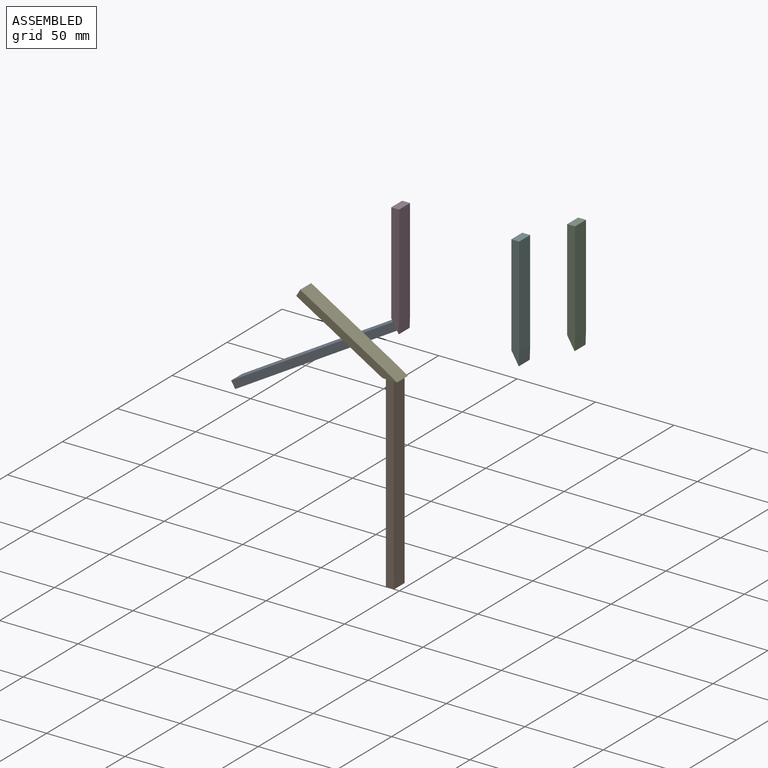
[diagram: assembled view]
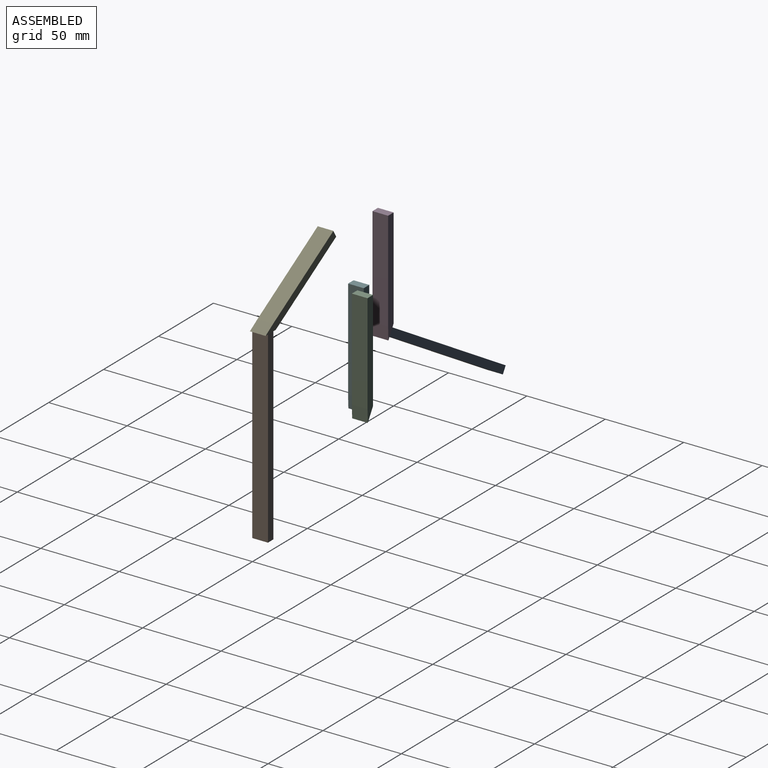
[diagram: assembled view, second angle]
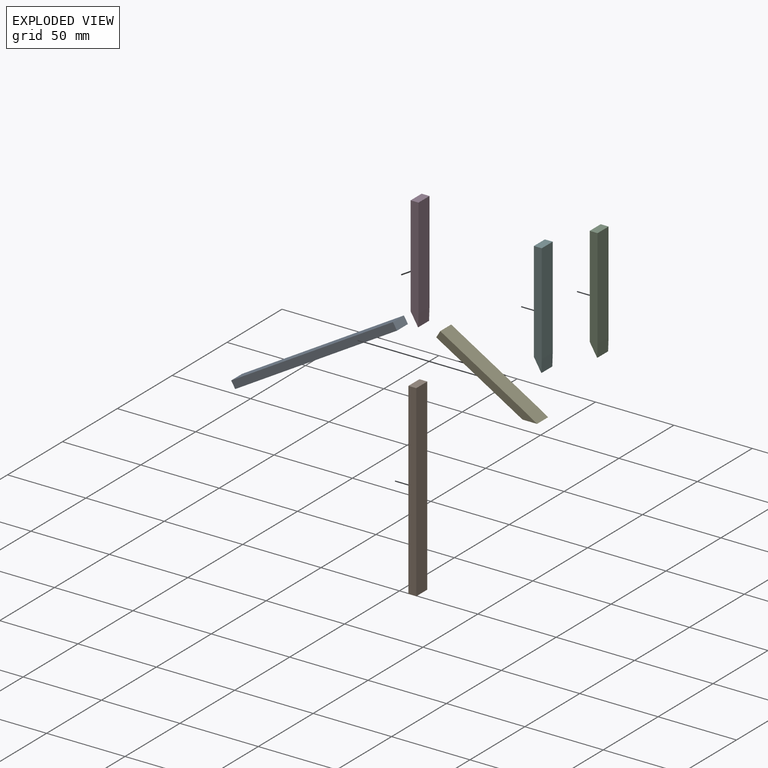
[diagram: exploded view]
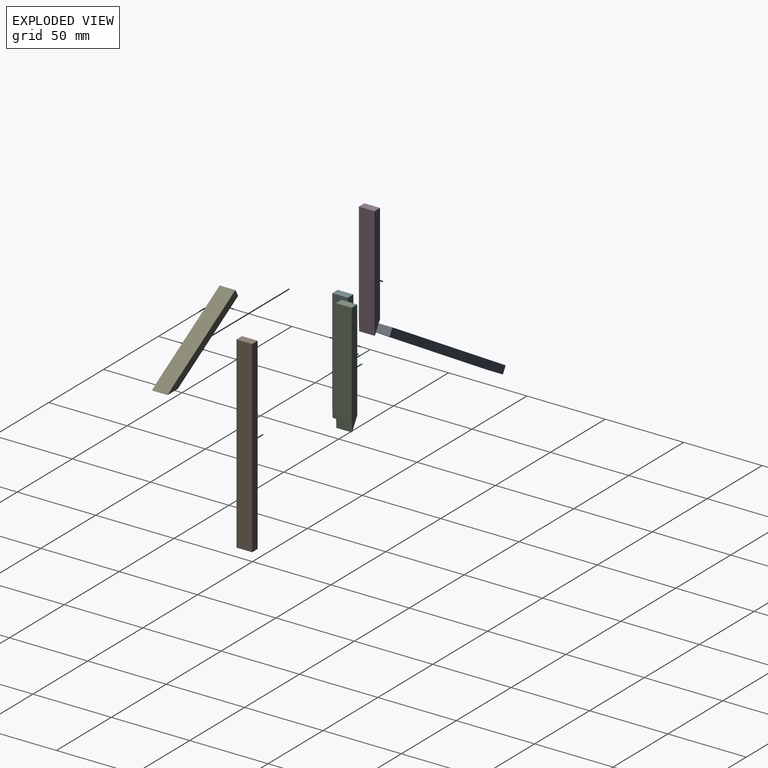
[diagram: exploded view, second angle]
ASSEMBLY  parts=6 mates=2
PART A: 6 faces, bbox 5x10x120 mm
  f0: plane 120x5mm, normal (0,1,0), area 600mm2, adj f1,f3,f4,f5
  f1: plane 10x5mm, normal (0,0,1), area 50mm2, adj f0,f2,f4,f5
  f2: plane 120x5mm, normal (0,-1,0), area 600mm2, adj f1,f3,f4,f5
  f3: plane 10x5mm, normal (0,0,-1), area 50mm2, adj f0,f2,f4,f5
  f4: plane 120x10mm, normal (1,0,0), area 1200mm2, adj f0,f1,f2,f3
  f5: plane 120x10mm, normal (-1,0,0), area 1200mm2, adj f0,f1,f2,f3
PART B: 6 faces, bbox 5x10x120 mm
  f0: plane 10x5mm, normal (0,0,1), area 50mm2, adj f1,f3,f4,f5
  f1: plane 120x5mm, normal (0,-1,0), area 600mm2, adj f0,f2,f4,f5
  f2: plane 10x5mm, normal (0,0,-1), area 50mm2, adj f1,f3,f4,f5
  f3: plane 120x5mm, normal (0,1,0), area 600mm2, adj f0,f2,f4,f5
  f4: plane 120x10mm, normal (1,0,0), area 1200mm2, adj f0,f1,f2,f3
  f5: plane 120x10mm, normal (-1,0,0), area 1200mm2, adj f0,f1,f2,f3
PART C: 7 faces, bbox 5x10x72 mm
  f0: plane 64x10mm, normal (-1,0,0), area 640mm2, adj f1,f4,f5,f6
  f1: plane 10x8mm, normal (-0.86,0,-0.51), area 93mm2, adj f0,f2,f5,f6
  f2: plane 10x8mm, normal (1,0,-0.03), area 80mm2, adj f1,f3,f5,f6
  f3: plane 64x10mm, normal (1,0,0), area 640mm2, adj f2,f4,f5,f6
  f4: plane 10x5mm, normal (0,0,1), area 50mm2, adj f0,f3,f5,f6
  f5: plane 72x5mm, normal (0,-1,0), area 340mm2, adj f0,f1,f2,f3,f4
  f6: plane 72x5mm, normal (0,1,0), area 340mm2, adj f0,f1,f2,f3,f4
PART D: same geometry as C
PART E: same geometry as C
PART F: same geometry as C
PLACE A rot(axis=(0,1,0),59.3deg) t=(-94.85,44.17,34.2)mm
PLACE B t=(-10.42,-28.88,0.77)mm
PLACE C t=(76.55,88.08,76.28)mm
PLACE D t=(-4.91,44.17,80.97)mm
PLACE E rot(axis=(0,-1,0),59.3deg) t=(-4.72,-8.88,101.99)mm
PLACE F t=(53.8,69.73,68.46)mm
MATE fastened B.f0 <-> E.f1  axis (0,0,1) through (-7.92,-13.88,61.03)mm
MATE fastened A.f1 <-> D.f1  axis (0.86,0,0.51) through (-41.76,39.17,62.82)mm
